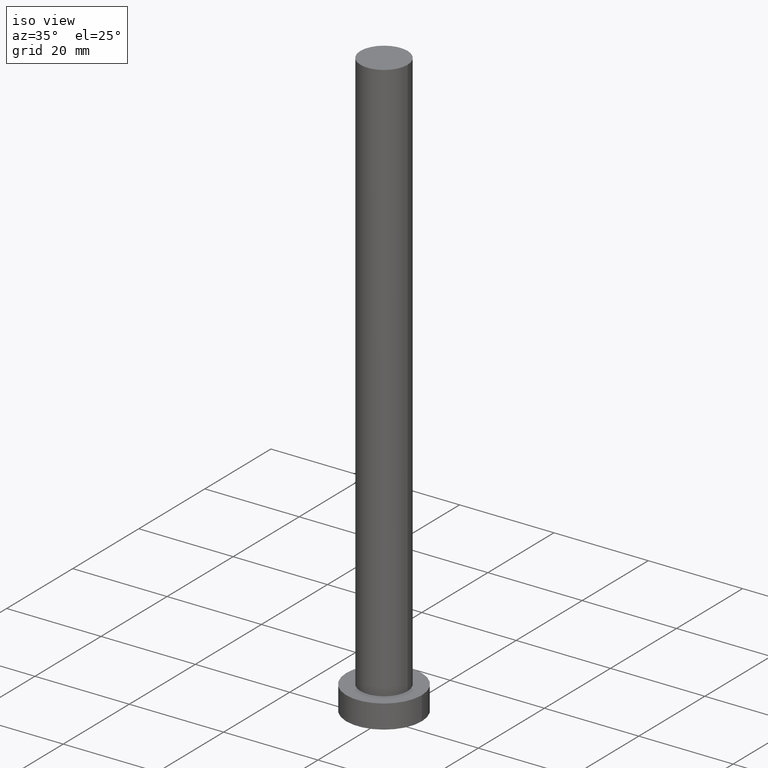
[diagram: clean part render]
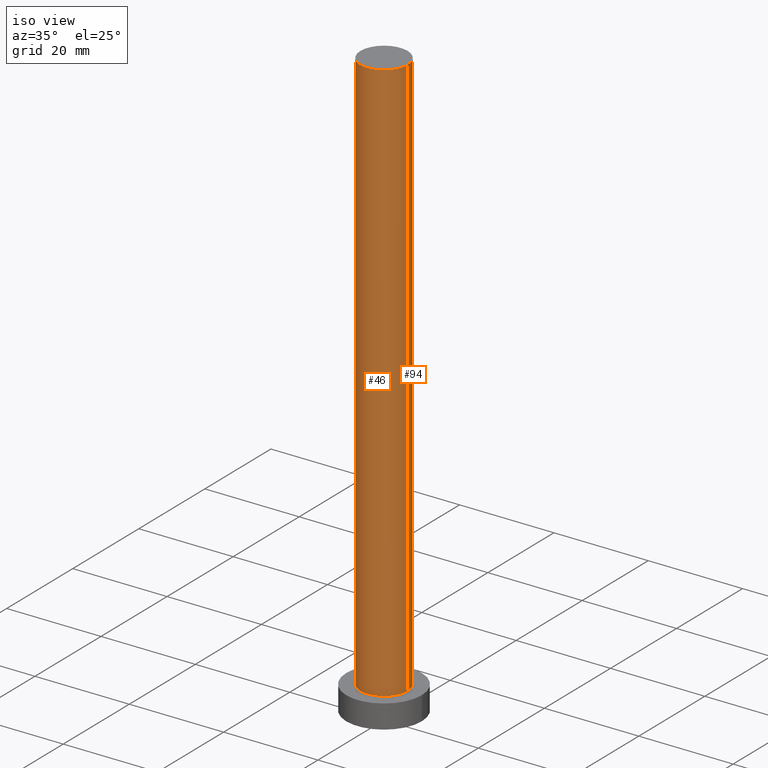
[diagram: same view with one multi-face feature highlighted, each face labeled with its STEP entity id]
A machine part, iso view. The highlighted faces form ONE feature: a constant-radius fillet chain: 2 tangent blend faces with common blend radius 5 mm. The faces share edges in the B-rep.
Their STEP definitions:
[1] entity #46 (Cylinder):
#3 = EDGE_CURVE ( 'NONE', #247, #142, #169, .T. ) ;
#20 = CARTESIAN_POINT ( 'NONE',  ( 5.000000000000000000, 6.123233995736766282E-16, 125.0000000000000000 ) ) ;
#37 = EDGE_CURVE ( 'NONE', #95, #247, #237, .T. ) ;
#42 = ORIENTED_EDGE ( 'NONE', *, *, #155, .F. ) ;
#46 = ADVANCED_FACE ( 'NONE', ( #225 ), #131, .T. ) ;
#48 = VERTEX_POINT ( 'NONE', #106 ) ;
#52 = CARTESIAN_POINT ( 'NONE',  ( -5.000000000000000000, 0.000000000000000000, 125.0000000000000000 ) ) ;
#60 = DIRECTION ( 'NONE',  ( 1.000000000000000000, 0.000000000000000000, 0.000000000000000000 ) ) ;
#61 = CARTESIAN_POINT ( 'NONE',  ( -5.000000000000000000, 0.000000000000000000, 5.000000000000000000 ) ) ;
#66 = EDGE_LOOP ( 'NONE', ( #205, #42, #125, #110 ) ) ;
#71 = CARTESIAN_POINT ( 'NONE',  ( 0.000000000000000000, 0.000000000000000000, 5.000000000000000000 ) ) ;
#77 = CARTESIAN_POINT ( 'NONE',  ( -5.000000000000000000, 0.000000000000000000, 125.0000000000000000 ) ) ;
#93 = DIRECTION ( 'NONE',  ( -0.000000000000000000, -0.000000000000000000, -1.000000000000000000 ) ) ;
#95 = VERTEX_POINT ( 'NONE', #77 ) ;
#103 = AXIS2_PLACEMENT_3D ( 'NONE', #71, #184, #223 ) ;
#106 = CARTESIAN_POINT ( 'NONE',  ( 5.000000000000000000, 6.123233995736766282E-16, 125.0000000000000000 ) ) ;
#110 = ORIENTED_EDGE ( 'NONE', *, *, #3, .T. ) ;
#125 = ORIENTED_EDGE ( 'NONE', *, *, #37, .T. ) ;
#128 = DIRECTION ( 'NONE',  ( -0.000000000000000000, -0.000000000000000000, -1.000000000000000000 ) ) ;
#131 = CYLINDRICAL_SURFACE ( 'NONE', #224, 5.000000000000000000 ) ;
#142 = VERTEX_POINT ( 'NONE', #229 ) ;
#155 = EDGE_CURVE ( 'NONE', #95, #48, #168, .T. ) ;
#164 = EDGE_CURVE ( 'NONE', #48, #142, #188, .T. ) ;
#168 = CIRCLE ( 'NONE', #176, 5.000000000000000000 ) ;
#169 = CIRCLE ( 'NONE', #103, 5.000000000000000000 ) ;
#176 = AXIS2_PLACEMENT_3D ( 'NONE', #250, #243, #60 ) ;
#183 = DIRECTION ( 'NONE',  ( -1.000000000000000000, 0.000000000000000000, 0.000000000000000000 ) ) ;
#184 = DIRECTION ( 'NONE',  ( 0.000000000000000000, 0.000000000000000000, 1.000000000000000000 ) ) ;
#188 = LINE ( 'NONE', #20, #189 ) ;
#189 = VECTOR ( 'NONE', #210, 1000.000000000000000 ) ;
#204 = VECTOR ( 'NONE', #93, 1000.000000000000000 ) ;
#205 = ORIENTED_EDGE ( 'NONE', *, *, #164, .F. ) ;
#210 = DIRECTION ( 'NONE',  ( -0.000000000000000000, -0.000000000000000000, -1.000000000000000000 ) ) ;
#223 = DIRECTION ( 'NONE',  ( 1.000000000000000000, 0.000000000000000000, 0.000000000000000000 ) ) ;
#224 = AXIS2_PLACEMENT_3D ( 'NONE', #242, #128, #183 ) ;
#225 = FACE_OUTER_BOUND ( 'NONE', #66, .T. ) ;
#229 = CARTESIAN_POINT ( 'NONE',  ( 5.000000000000000000, 6.123233995736766282E-16, 5.000000000000000000 ) ) ;
#237 = LINE ( 'NONE', #52, #204 ) ;
#242 = CARTESIAN_POINT ( 'NONE',  ( 0.000000000000000000, 0.000000000000000000, 125.0000000000000000 ) ) ;
#243 = DIRECTION ( 'NONE',  ( 0.000000000000000000, 0.000000000000000000, 1.000000000000000000 ) ) ;
#247 = VERTEX_POINT ( 'NONE', #61 ) ;
#250 = CARTESIAN_POINT ( 'NONE',  ( 0.000000000000000000, 0.000000000000000000, 125.0000000000000000 ) ) ;
[2] entity #94 (Cylinder):
#13 = EDGE_CURVE ( 'NONE', #48, #95, #240, .T. ) ;
#16 = EDGE_CURVE ( 'NONE', #142, #247, #24, .T. ) ;
#17 = CYLINDRICAL_SURFACE ( 'NONE', #200, 5.000000000000000000 ) ;
#20 = CARTESIAN_POINT ( 'NONE',  ( 5.000000000000000000, 6.123233995736766282E-16, 125.0000000000000000 ) ) ;
#21 = CARTESIAN_POINT ( 'NONE',  ( 0.000000000000000000, 0.000000000000000000, 125.0000000000000000 ) ) ;
#22 = ORIENTED_EDGE ( 'NONE', *, *, #16, .T. ) ;
#24 = CIRCLE ( 'NONE', #108, 5.000000000000000000 ) ;
#35 = CARTESIAN_POINT ( 'NONE',  ( 0.000000000000000000, 0.000000000000000000, 5.000000000000000000 ) ) ;
#37 = EDGE_CURVE ( 'NONE', #95, #247, #237, .T. ) ;
#47 = ORIENTED_EDGE ( 'NONE', *, *, #37, .F. ) ;
#48 = VERTEX_POINT ( 'NONE', #106 ) ;
#52 = CARTESIAN_POINT ( 'NONE',  ( -5.000000000000000000, 0.000000000000000000, 125.0000000000000000 ) ) ;
#61 = CARTESIAN_POINT ( 'NONE',  ( -5.000000000000000000, 0.000000000000000000, 5.000000000000000000 ) ) ;
#77 = CARTESIAN_POINT ( 'NONE',  ( -5.000000000000000000, 0.000000000000000000, 125.0000000000000000 ) ) ;
#93 = DIRECTION ( 'NONE',  ( -0.000000000000000000, -0.000000000000000000, -1.000000000000000000 ) ) ;
#94 = ADVANCED_FACE ( 'NONE', ( #113 ), #17, .T. ) ;
#95 = VERTEX_POINT ( 'NONE', #77 ) ;
#100 = ORIENTED_EDGE ( 'NONE', *, *, #164, .T. ) ;
#106 = CARTESIAN_POINT ( 'NONE',  ( 5.000000000000000000, 6.123233995736766282E-16, 125.0000000000000000 ) ) ;
#108 = AXIS2_PLACEMENT_3D ( 'NONE', #35, #160, #126 ) ;
#113 = FACE_OUTER_BOUND ( 'NONE', #179, .T. ) ;
#126 = DIRECTION ( 'NONE',  ( 1.000000000000000000, 0.000000000000000000, 0.000000000000000000 ) ) ;
#132 = DIRECTION ( 'NONE',  ( 1.000000000000000000, 0.000000000000000000, 0.000000000000000000 ) ) ;
#134 = AXIS2_PLACEMENT_3D ( 'NONE', #162, #166, #132 ) ;
#136 = DIRECTION ( 'NONE',  ( -1.000000000000000000, 0.000000000000000000, 0.000000000000000000 ) ) ;
#142 = VERTEX_POINT ( 'NONE', #229 ) ;
#160 = DIRECTION ( 'NONE',  ( 0.000000000000000000, 0.000000000000000000, 1.000000000000000000 ) ) ;
#162 = CARTESIAN_POINT ( 'NONE',  ( 0.000000000000000000, 0.000000000000000000, 125.0000000000000000 ) ) ;
#164 = EDGE_CURVE ( 'NONE', #48, #142, #188, .T. ) ;
#166 = DIRECTION ( 'NONE',  ( 0.000000000000000000, 0.000000000000000000, 1.000000000000000000 ) ) ;
#172 = DIRECTION ( 'NONE',  ( -0.000000000000000000, -0.000000000000000000, -1.000000000000000000 ) ) ;
#179 = EDGE_LOOP ( 'NONE', ( #212, #100, #22, #47 ) ) ;
#188 = LINE ( 'NONE', #20, #189 ) ;
#189 = VECTOR ( 'NONE', #210, 1000.000000000000000 ) ;
#200 = AXIS2_PLACEMENT_3D ( 'NONE', #21, #172, #136 ) ;
#204 = VECTOR ( 'NONE', #93, 1000.000000000000000 ) ;
#210 = DIRECTION ( 'NONE',  ( -0.000000000000000000, -0.000000000000000000, -1.000000000000000000 ) ) ;
#212 = ORIENTED_EDGE ( 'NONE', *, *, #13, .F. ) ;
#229 = CARTESIAN_POINT ( 'NONE',  ( 5.000000000000000000, 6.123233995736766282E-16, 5.000000000000000000 ) ) ;
#237 = LINE ( 'NONE', #52, #204 ) ;
#240 = CIRCLE ( 'NONE', #134, 5.000000000000000000 ) ;
#247 = VERTEX_POINT ( 'NONE', #61 ) ;